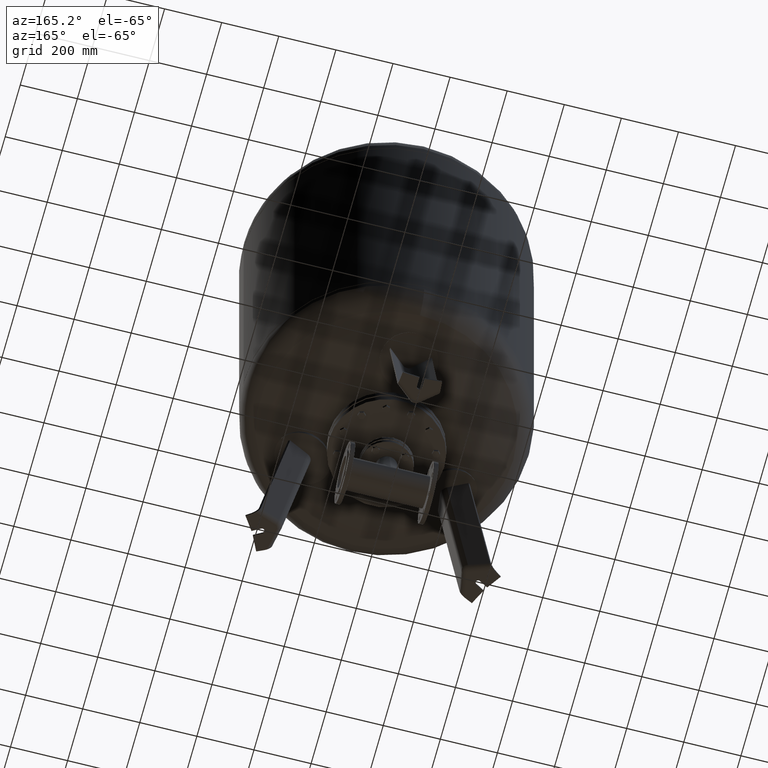
[diagram: clean part render]
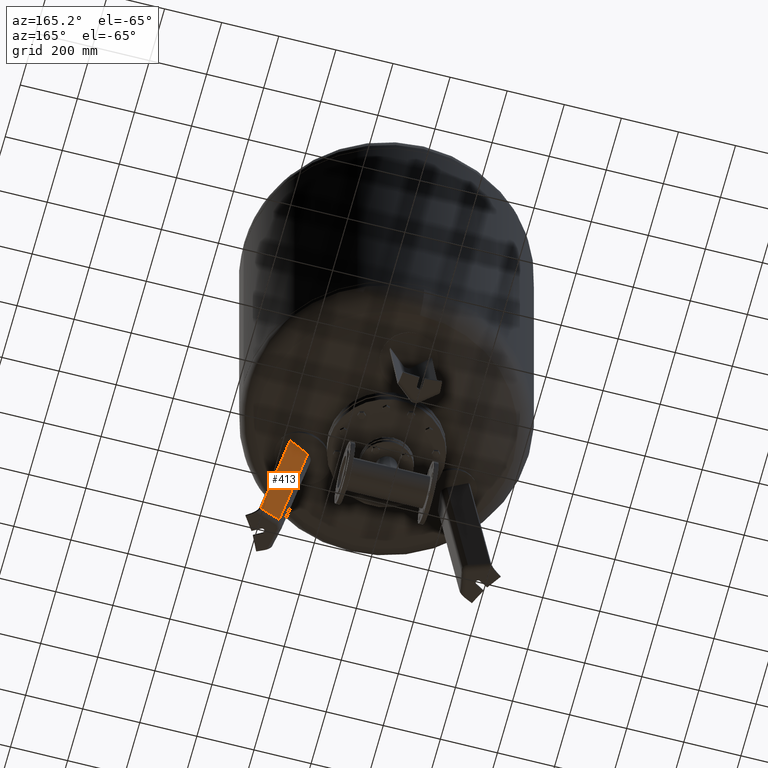
[diagram: same view with one face highlighted and labeled with its STEP entity id]
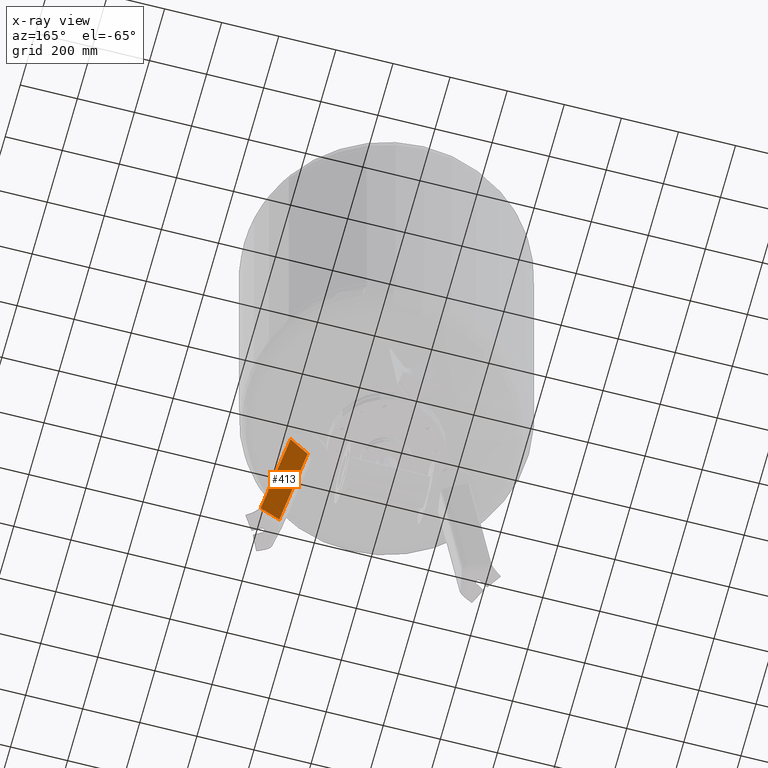
[diagram: x-ray of the same camera — body ghosted, the highlighted face saturated]
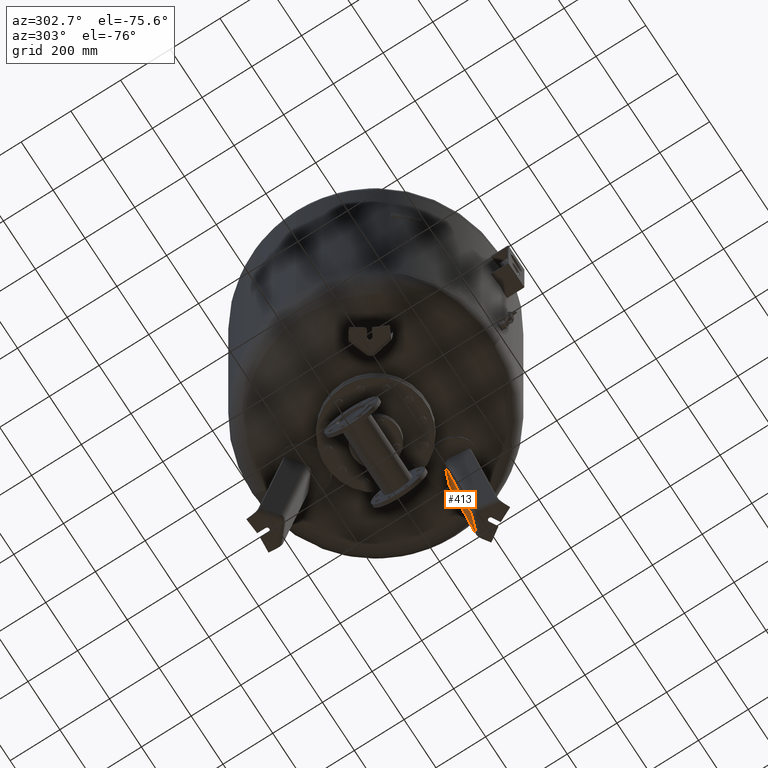
[diagram: same view with one face highlighted and labeled with its STEP entity id]
A machine part, auxiliary view. The second image highlights one B-rep face of the part: STEP entity #413.
The next image is the same camera in x-ray: the body ghosted, the highlighted face saturated — about 0% of this face is hidden behind the body in this view.
A second angle (auxiliary view) of the same face is appended — the face is thin or edge-on in the first view.
In plain terms, the highlighted planar face has unit normal (-0.3243, 0.9325, -0.1588).
Its self-contained STEP definition (entity closure, byte-faithful):
#206=CARTESIAN_POINT('',(330.204527811773860,-172.010904562808240,21.029948423057281));
#207=VERTEX_POINT('',#206);
#274=CARTESIAN_POINT('',(310.872993449705400,-94.612116881097251,515.016008075238010));
#275=VERTEX_POINT('',#274);
#283=CARTESIAN_POINT('',(243.634886242326840,-122.029898699038470,491.314238600476020));
#284=VERTEX_POINT('',#283);
#285=CARTESIAN_POINT('',(243.634886242326840,-122.029898699038470,491.314238600476020));
#286=CARTESIAN_POINT('',(246.922281030093610,-120.721313730727760,492.285612555272960));
#287=CARTESIAN_POINT('',(250.211931321607120,-119.406473753383690,493.289112018364160));
#288=CARTESIAN_POINT('',(260.232066523785080,-115.386602631931740,496.433369218256590));
#289=CARTESIAN_POINT('',(266.969501212766030,-112.663312215016860,498.667159290237410));
#290=CARTESIAN_POINT('',(286.107308423791490,-104.875196577748850,505.320924596915400));
#291=CARTESIAN_POINT('',(298.512827830314220,-99.764252402400402,510.001214573362460));
#292=CARTESIAN_POINT('',(310.872993449705400,-94.612116881097251,515.016008075238010));
#293=B_SPLINE_CURVE_WITH_KNOTS('',3,(#285,#286,#287,#288,#289,#290,#291,#292),.UNSPECIFIED.,.F.,.U.,(4,2,2,4),(5.453253502265779,6.515864870681246,8.687819827574995,12.681292855444173),.UNSPECIFIED.);
#294=EDGE_CURVE('',#284,#275,#293,.T.);
#363=CARTESIAN_POINT('',(243.634886242326840,-122.029898699038470,491.314238600476020));
#364=DIRECTION('',(0.180056805991956,-0.103955845408880,-0.978147600733805));
#365=VECTOR('',#364,480.790720975660350);
#366=LINE('',#363,#365);
#367=EDGE_CURVE('',#284,#207,#366,.T.);
#390=CARTESIAN_POINT('',(326.402879907382160,-188.448790578796350,-67.735293817669458));
#391=DIRECTION('',(-0.324282864533177,0.932535537409927,-0.158802063077709));
#392=DIRECTION('',(0.180056805991956,-0.103955845408880,-0.978147600733806));
#393=AXIS2_PLACEMENT_3D('',#390,#391,#392);
#394=PLANE('',#393);
#395=CARTESIAN_POINT('',(401.805642099864490,-147.112106057392370,21.029948423057284));
#396=VERTEX_POINT('',#395);
#397=CARTESIAN_POINT('',(401.805642099864490,-147.112106057392370,21.029948423057284));
#398=DIRECTION('',(-0.180056805991955,0.103955845408880,0.978147600733806));
#399=VECTOR('',#398,505.022002079842250);
#400=LINE('',#397,#399);
#401=EDGE_CURVE('',#396,#275,#400,.T.);
#402=ORIENTED_EDGE('',*,*,#401,.F.);
#403=CARTESIAN_POINT('',(330.204527811773860,-172.010904562808240,21.029948423057281));
#404=DIRECTION('',(0.944521094592691,0.328450760190053,4.686537E-017));
#405=VECTOR('',#404,75.806792138366575);
#406=LINE('',#403,#405);
#407=EDGE_CURVE('',#207,#396,#406,.T.);
#408=ORIENTED_EDGE('',*,*,#407,.F.);
#409=ORIENTED_EDGE('',*,*,#367,.F.);
#410=ORIENTED_EDGE('',*,*,#294,.T.);
#411=EDGE_LOOP('',(#402,#408,#409,#410));
#412=FACE_OUTER_BOUND('',#411,.T.);
#413=ADVANCED_FACE('',(#412),#394,.T.);